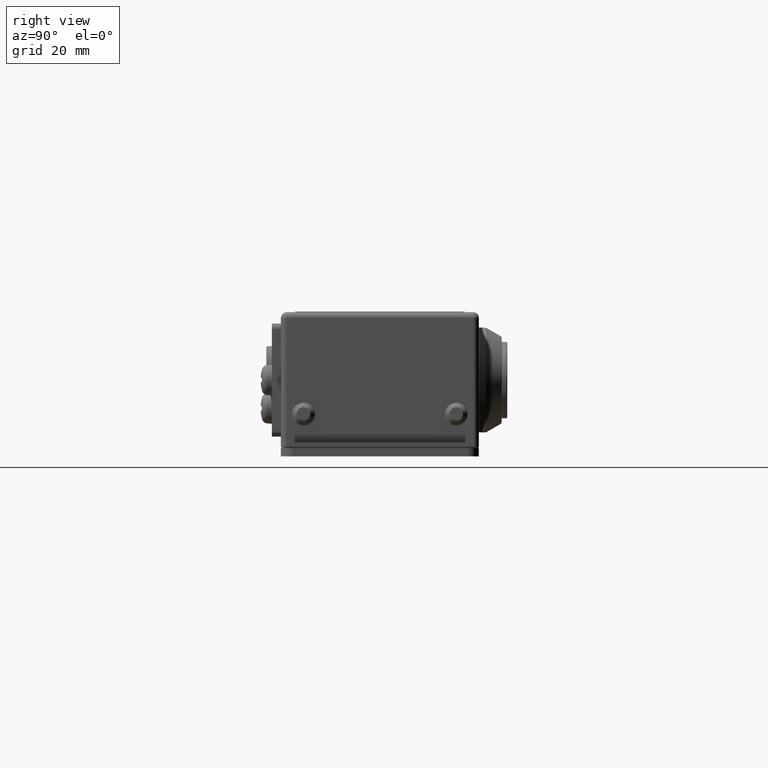
[diagram: clean part render]
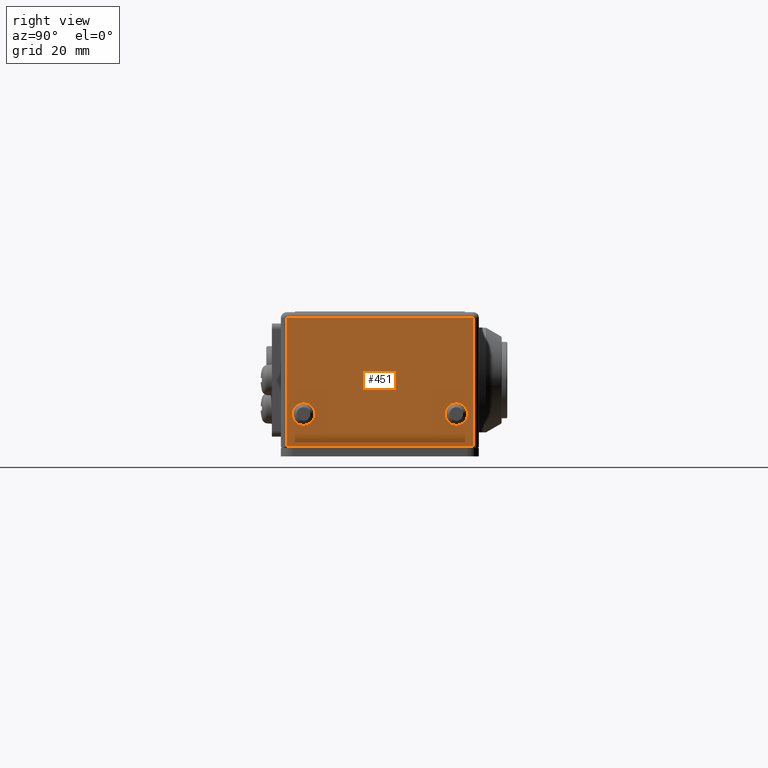
[diagram: same view with one face highlighted and labeled with its STEP entity id]
A machine part, right view. The second image highlights one B-rep face of the part: STEP entity #451.
In plain terms, the highlighted planar face has unit normal (-1, 0, 0).
Its self-contained STEP definition (entity closure, byte-faithful):
#451 = ADVANCED_FACE( '', ( #1186, #1187, #1188 ), #1189, .F. );
#1186 = FACE_BOUND( '', #2307, .T. );
#1187 = FACE_OUTER_BOUND( '', #2308, .T. );
#1188 = FACE_BOUND( '', #2309, .T. );
#1189 = PLANE( '', #2310 );
#2307 = EDGE_LOOP( '', ( #3680 ) );
#2308 = EDGE_LOOP( '', ( #3681, #3682, #3683, #3684 ) );
#2309 = EDGE_LOOP( '', ( #3685 ) );
#2310 = AXIS2_PLACEMENT_3D( '', #3686, #3687, #3688 );
#3680 = ORIENTED_EDGE( '', *, *, #6148, .T. );
#3681 = ORIENTED_EDGE( '', *, *, #6149, .T. );
#3682 = ORIENTED_EDGE( '', *, *, #6150, .T. );
#3683 = ORIENTED_EDGE( '', *, *, #6151, .T. );
#3684 = ORIENTED_EDGE( '', *, *, #6152, .T. );
#3685 = ORIENTED_EDGE( '', *, *, #6153, .F. );
#3686 = CARTESIAN_POINT( '', ( 45.9999999999999, 17.5000000000000, -24.0000000000000 ) );
#3687 = DIRECTION( '', ( -1.00000000000000, 0.000000000000000, 0.000000000000000 ) );
#3688 = DIRECTION( '', ( 0.000000000000000, 1.00000000000000, 0.000000000000000 ) );
#6148 = EDGE_CURVE( '', #7339, #7339, #7340, .T. );
#6149 = EDGE_CURVE( '', #7341, #7342, #7343, .T. );
#6150 = EDGE_CURVE( '', #7342, #7344, #7345, .T. );
#6151 = EDGE_CURVE( '', #7344, #7346, #7347, .T. );
#6152 = EDGE_CURVE( '', #7346, #7341, #7348, .F. );
#6153 = EDGE_CURVE( '', #7349, #7349, #7350, .T. );
#7339 = VERTEX_POINT( '', #8953 );
#7340 = CIRCLE( '', #8954, 1.99999999999997 );
#7341 = VERTEX_POINT( '', #8955 );
#7342 = VERTEX_POINT( '', #8956 );
#7343 = LINE( '', #8957, #8958 );
#7344 = VERTEX_POINT( '', #8959 );
#7345 = LINE( '', #8960, #8961 );
#7346 = VERTEX_POINT( '', #8962 );
#7347 = LINE( '', #8963, #8964 );
#7348 = LINE( '', #8965, #8966 );
#7349 = VERTEX_POINT( '', #8967 );
#7350 = CIRCLE( '', #8968, 1.99999999999997 );
#8953 = CARTESIAN_POINT( '', ( 46.0000000000000, -13.5000000000000, -20.0000000000000 ) );
#8954 = AXIS2_PLACEMENT_3D( '', #10683, #10684, #10685 );
#8955 = CARTESIAN_POINT( '', ( 45.9999999999999, -16.5000000000000, -23.8000000000000 ) );
#8956 = CARTESIAN_POINT( '', ( 45.9999999999999, 16.5000000000000, -23.8000000000000 ) );
#8957 = CARTESIAN_POINT( '', ( 45.9999999999999, 17.5000000000000, -23.8000000000000 ) );
#8958 = VECTOR( '', #10686, 1000.00000000000 );
#8959 = CARTESIAN_POINT( '', ( 45.9999999999999, 16.5000000000000, -1.00000000000000 ) );
#8960 = CARTESIAN_POINT( '', ( 45.9999999999999, 16.5000000000000, -24.0000000000000 ) );
#8961 = VECTOR( '', #10687, 1000.00000000000 );
#8962 = CARTESIAN_POINT( '', ( 45.9999999999999, -16.5000000000000, -1.00000000000000 ) );
#8963 = CARTESIAN_POINT( '', ( 45.9999999999999, 17.5000000000000, -1.00000000000000 ) );
#8964 = VECTOR( '', #10688, 1000.00000000000 );
#8965 = CARTESIAN_POINT( '', ( 45.9999999999999, -16.5000000000000, -24.0000000000000 ) );
#8966 = VECTOR( '', #10689, 1000.00000000000 );
#8967 = CARTESIAN_POINT( '', ( 46.0000000000000, 13.5000000000000, -20.0000000000000 ) );
#8968 = AXIS2_PLACEMENT_3D( '', #10690, #10691, #10692 );
#10683 = CARTESIAN_POINT( '', ( 46.0000000000000, -13.5000000000000, -18.0000000000000 ) );
#10684 = DIRECTION( '', ( -1.00000000000000, 0.000000000000000, 0.000000000000000 ) );
#10685 = DIRECTION( '', ( 0.000000000000000, 0.000000000000000, -1.00000000000000 ) );
#10686 = DIRECTION( '', ( 0.000000000000000, 1.00000000000000, 0.000000000000000 ) );
#10687 = DIRECTION( '', ( 0.000000000000000, 0.000000000000000, 1.00000000000000 ) );
#10688 = DIRECTION( '', ( 0.000000000000000, -1.00000000000000, 0.000000000000000 ) );
#10689 = DIRECTION( '', ( 0.000000000000000, 0.000000000000000, 1.00000000000000 ) );
#10690 = CARTESIAN_POINT( '', ( 46.0000000000000, 13.5000000000000, -18.0000000000000 ) );
#10691 = DIRECTION( '', ( 1.00000000000000, -0.000000000000000, 0.000000000000000 ) );
#10692 = DIRECTION( '', ( 0.000000000000000, 0.000000000000000, -1.00000000000000 ) );